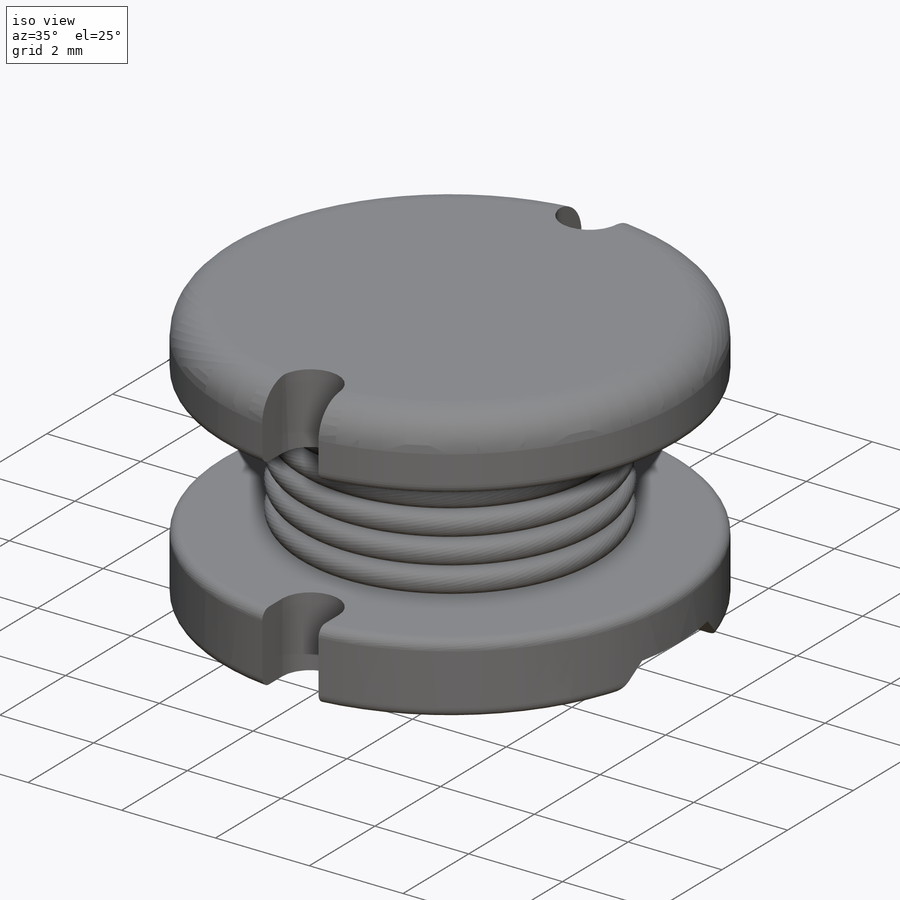
[diagram: iso view]
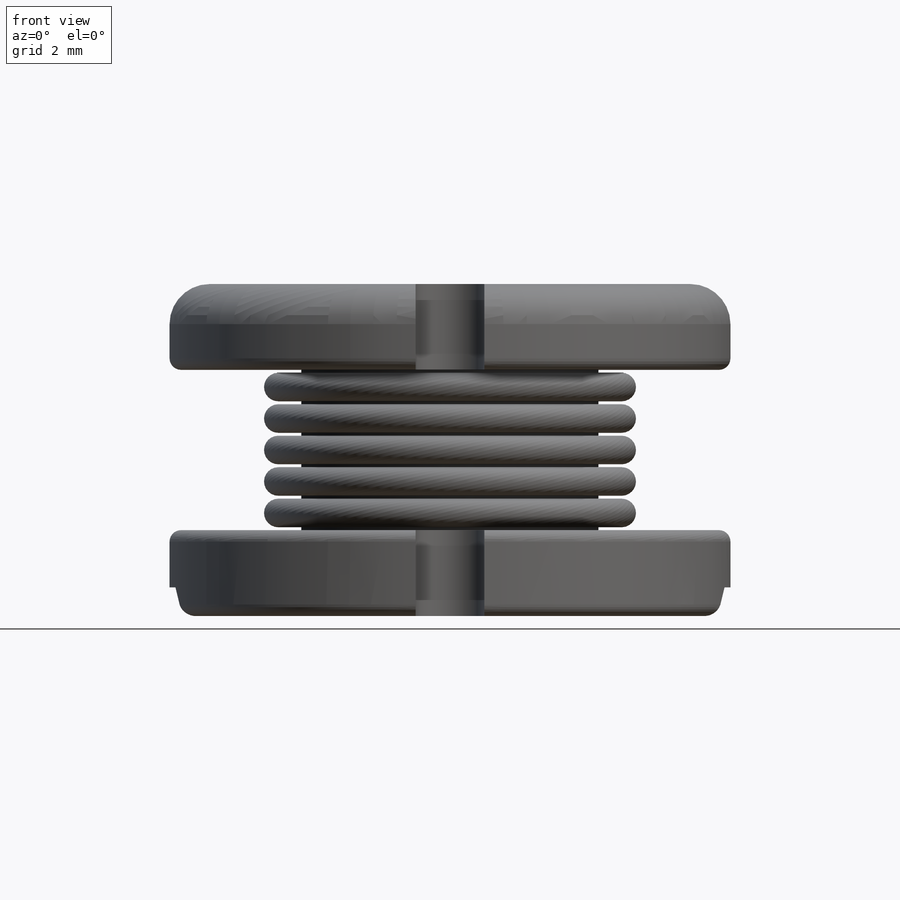
[diagram: front view]
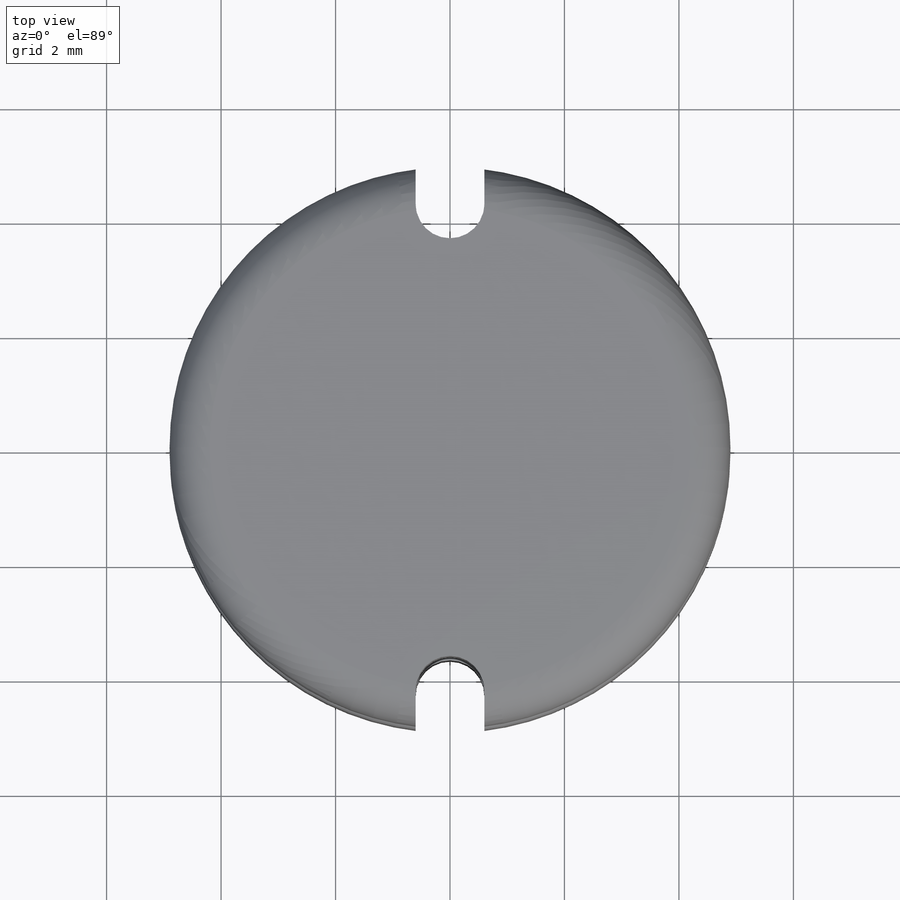
[diagram: top view]
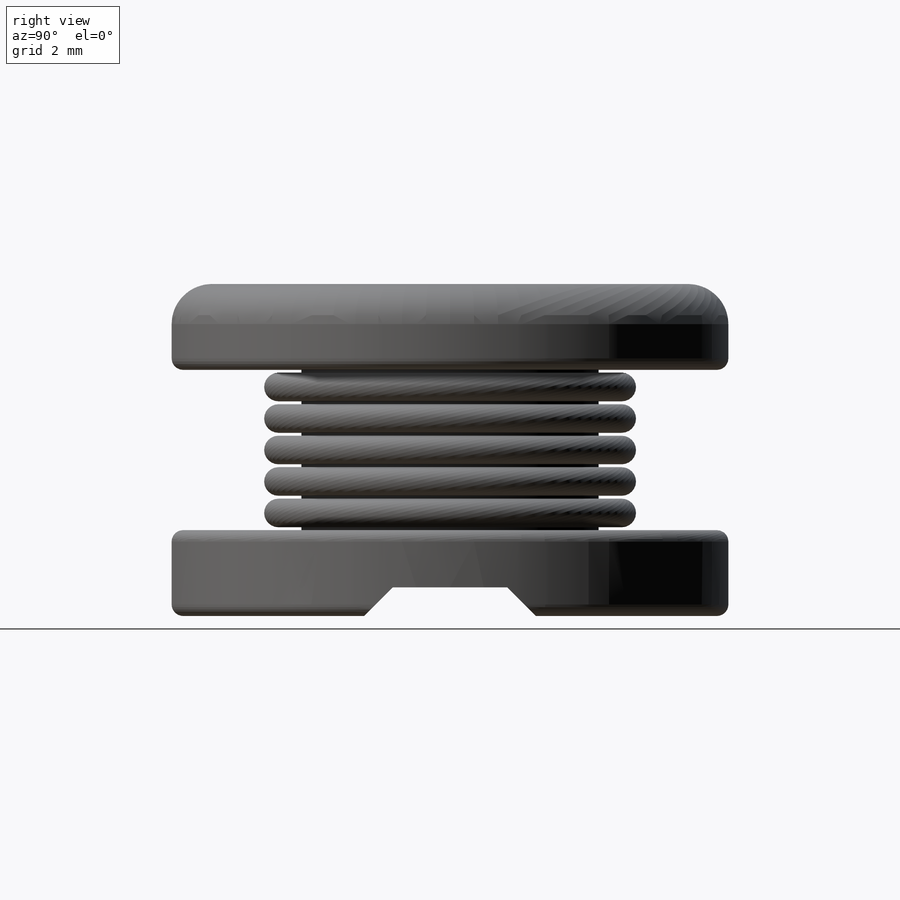
[diagram: right view]
SOLIDWORKS PART (.sldprt)
format: sldprt  version: not decoded by parser v0  size: 510,464 bytes
history: native  units: mm
features: sketch x4, revolve x2, cut_extrude x2, material x1 (+12 scaffold rows collapsed)
feature tree (21):
  scaffold x12  (default folders/planes/origin — collapsed)
  material  "Material <not specified>"
  sketch  "Sketch1"  dims[D6=0.7mm D7=0.2mm D1=5.8mm D2=4.9mm D3=1.5mm D4=1.5mm D5=2.6mm]
  revolve  "Revolve1"  Angle=360deg
  sketch  "Sketch2"  dims[D1=8.5mm D2=1.2mm D3=12.0mm]
  cut_extrude  "Cut-Extrude1"  [1 undecoded]
  sketch  "Sketch3"  dims[c1.D1=0.5mm c1.D4=0.5mm c1.D5=0.5mm c1.D7=0.5mm c1.D2=0.55mm c1.D3=0.55mm c2.D4=0.55mm c2.D5=0.55mm c2.D6=0.3mm c2.D7=3.0mm]
  revolve  "Revolve2"  Angle=360deg
  sketch  "Sketch4"  dims[c1.D1=2.0mm c1.D2=0.5mm c1.D3=1.0mm c1.D4=~1.215155mm c2.D4=45.0deg]
  cut_extrude  "Cut-Extrude2"  Depth=12mm
decode coverage: 7 of 8 modeling features carry decoded parameters
note: ~ marks probable driven/reference dimensions
note: 1 parameter value undecoded
note: suppression state not decoded; provenance and decode notes live in map.json
